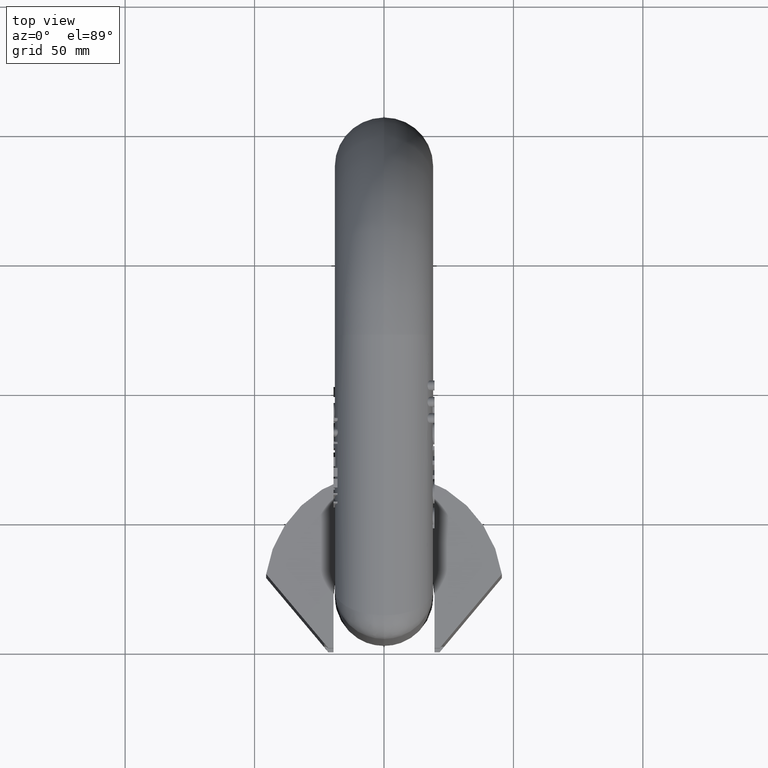
[diagram: clean part render]
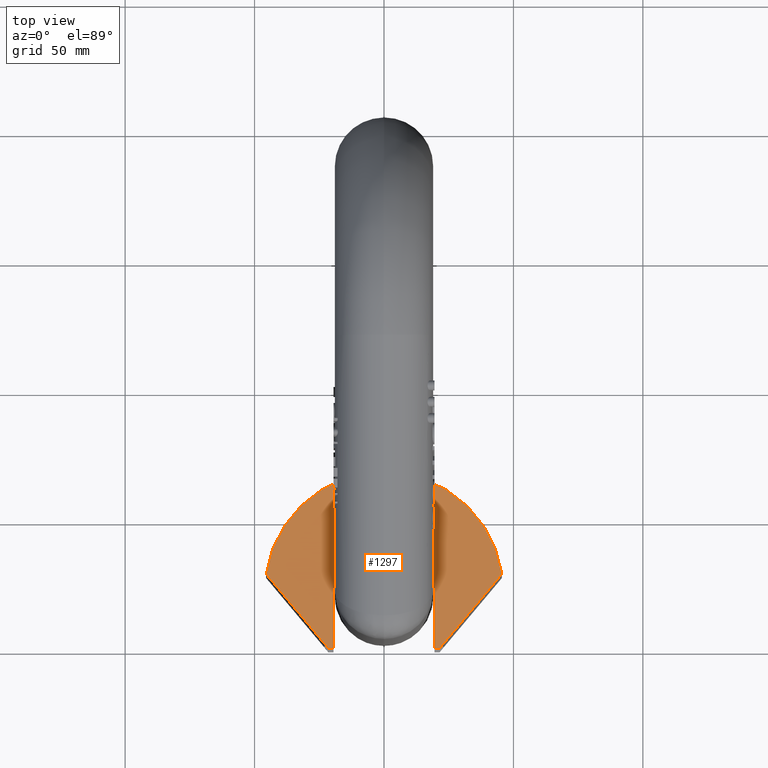
[diagram: same view with one face highlighted and labeled with its STEP entity id]
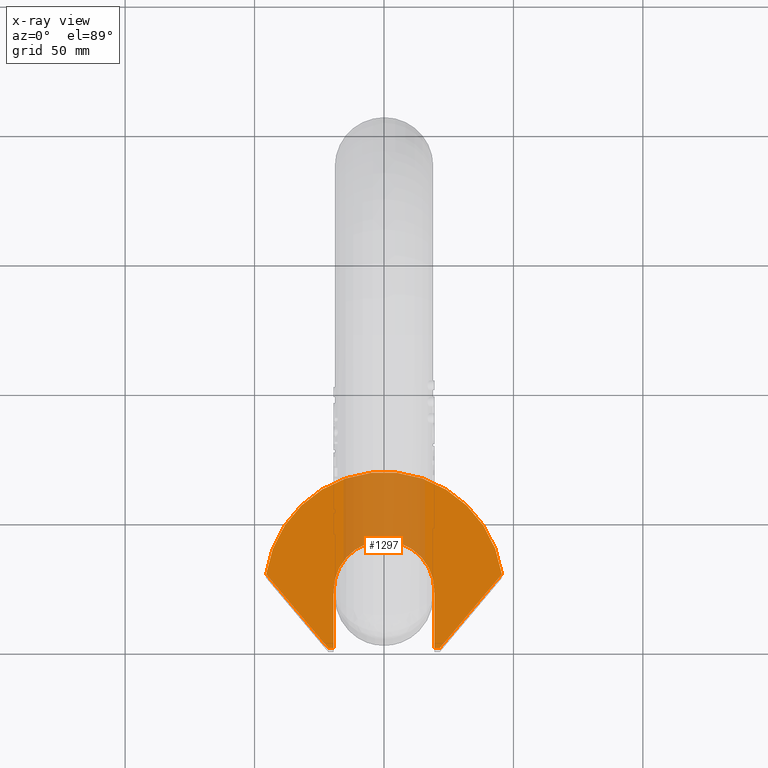
[diagram: x-ray of the same camera — body ghosted, the highlighted face saturated]
A machine part, top view. The second image highlights one B-rep face of the part: STEP entity #1297.
The next image is the same camera in x-ray: the body ghosted, the highlighted face saturated — about 28% of this face is hidden behind the body in this view.
In plain terms, the highlighted planar face has unit normal (0, 0, -1).
Its self-contained STEP definition (entity closure, byte-faithful):
#1050=PLANE('',#9015);
#1297=ADVANCED_FACE('',(#1827),#1050,.F.);
#1827=FACE_OUTER_BOUND('',#2277,.T.);
#2277=EDGE_LOOP('',(#2882,#2883,#2884,#2885,#2886,#2887,#2888,#2889));
#2774=CIRCLE('',#9011,46.);
#2776=CIRCLE('',#9014,19.5);
#2882=ORIENTED_EDGE('',*,*,#6386,.F.);
#2883=ORIENTED_EDGE('',*,*,#6387,.T.);
#2884=ORIENTED_EDGE('',*,*,#6388,.T.);
#2885=ORIENTED_EDGE('',*,*,#6389,.T.);
#2886=ORIENTED_EDGE('',*,*,#6390,.T.);
#2887=ORIENTED_EDGE('',*,*,#6391,.T.);
#2888=ORIENTED_EDGE('',*,*,#6392,.F.);
#2889=ORIENTED_EDGE('',*,*,#6383,.T.);
#5510=VERTEX_POINT('',#11219);
#5512=VERTEX_POINT('',#11222);
#5514=VERTEX_POINT('',#11228);
#5515=VERTEX_POINT('',#11230);
#5516=VERTEX_POINT('',#11232);
#5517=VERTEX_POINT('',#11234);
#5518=VERTEX_POINT('',#11236);
#5519=VERTEX_POINT('',#11238);
#6383=EDGE_CURVE('',#5512,#5510,#2774,.T.);
#6386=EDGE_CURVE('',#5514,#5510,#7700,.T.);
#6387=EDGE_CURVE('',#5514,#5515,#7701,.T.);
#6388=EDGE_CURVE('',#5515,#5516,#7702,.T.);
#6389=EDGE_CURVE('',#5516,#5517,#2776,.T.);
#6390=EDGE_CURVE('',#5517,#5518,#7703,.T.);
#6391=EDGE_CURVE('',#5518,#5519,#7704,.T.);
#6392=EDGE_CURVE('',#5512,#5519,#7705,.T.);
#7700=LINE('',#11227,#8278);
#7701=LINE('',#11229,#8279);
#7702=LINE('',#11231,#8280);
#7703=LINE('',#11235,#8281);
#7704=LINE('',#11237,#8282);
#7705=LINE('',#11239,#8283);
#8278=VECTOR('',#9511,1.);
#8279=VECTOR('',#9512,1.);
#8280=VECTOR('',#9513,1.);
#8281=VECTOR('',#9516,1.);
#8282=VECTOR('',#9517,1.);
#8283=VECTOR('',#9518,1.);
#9011=AXIS2_PLACEMENT_3D('',#11221,#9504,#9505);
#9014=AXIS2_PLACEMENT_3D('',#11233,#9514,#9515);
#9015=AXIS2_PLACEMENT_3D('',#11240,#9519,#9520);
#9504=DIRECTION('',(0.,0.,1.));
#9505=DIRECTION('',(1.,0.,0.));
#9511=DIRECTION('',(-0.642787609686539,0.766044443118978,0.));
#9512=DIRECTION('',(1.,-1.4884168023038E-32,0.));
#9513=DIRECTION('',(1.5770213417971E-16,1.,0.));
#9514=DIRECTION('',(0.,0.,-1.));
#9515=DIRECTION('',(1.,1.77920356510442E-16,0.));
#9516=DIRECTION('',(1.5770213417971E-16,-1.,0.));
#9517=DIRECTION('',(1.,1.58144285244778E-32,0.));
#9518=DIRECTION('',(-0.642787609686539,-0.766044443118978,0.));
#9519=DIRECTION('',(0.,0.,-1.));
#9520=DIRECTION('',(-1.,0.,0.));
#11219=CARTESIAN_POINT('',(-45.5202505487029,28.6262198864297,44.5));
#11221=CARTESIAN_POINT('',(0.,22.,44.5));
#11222=CARTESIAN_POINT('',(45.5202505487029,28.6262198864297,44.5));
#11227=CARTESIAN_POINT('',(-23.4496031930538,2.32344660945499,44.5));
#11228=CARTESIAN_POINT('',(-21.5,0.,44.5));
#11229=CARTESIAN_POINT('',(-46.,0.,44.5));
#11230=CARTESIAN_POINT('',(-19.5,-3.94430452610506E-31,44.5));
#11231=CARTESIAN_POINT('',(-19.5,0.,44.5));
#11232=CARTESIAN_POINT('',(-19.5,22.,44.5));
#11233=CARTESIAN_POINT('',(0.,22.,44.5));
#11234=CARTESIAN_POINT('',(19.5,22.,44.5));
#11235=CARTESIAN_POINT('',(19.5,22.,44.5));
#11236=CARTESIAN_POINT('',(19.5,0.,44.5));
#11237=CARTESIAN_POINT('',(19.5,-4.19082355898663E-31,44.5));
#11238=CARTESIAN_POINT('',(21.5,0.,44.5));
#11239=CARTESIAN_POINT('',(23.4496031930538,2.32344660945499,44.5));
#11240=CARTESIAN_POINT('',(0.,22.,44.5));